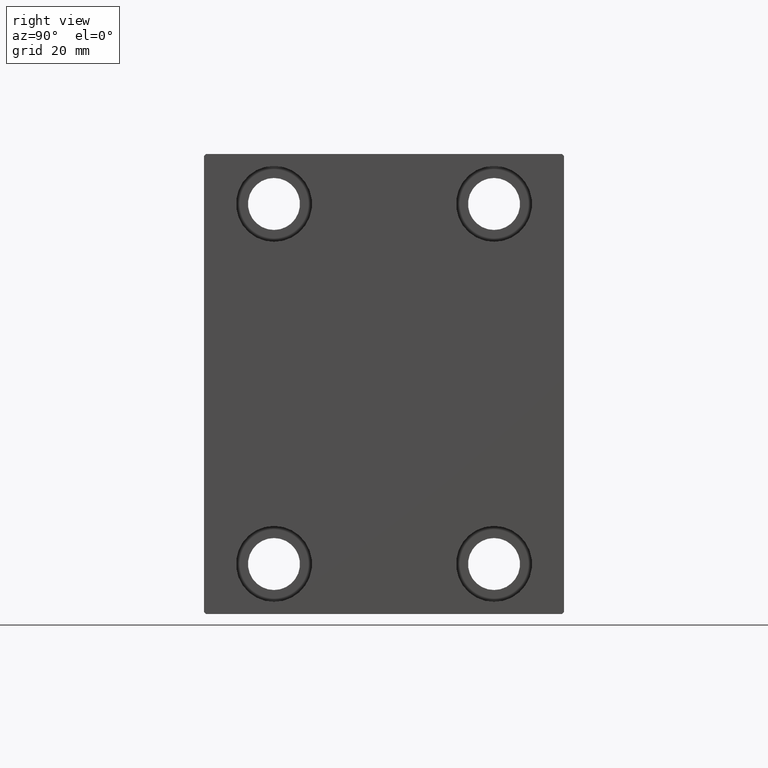
[diagram: clean part render]
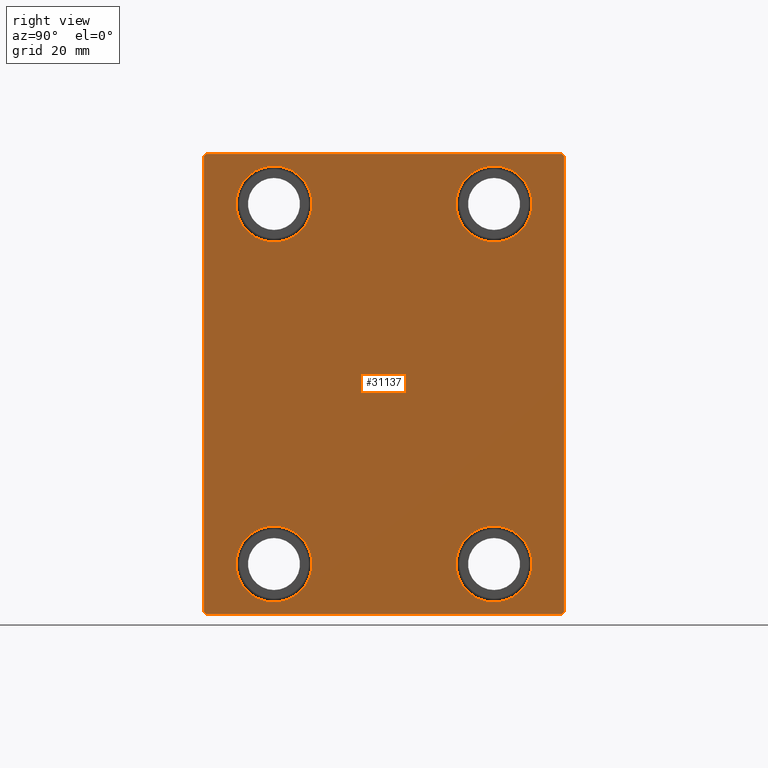
[diagram: same view with one face highlighted and labeled with its STEP entity id]
A machine part, right view. The second image highlights one B-rep face of the part: STEP entity #31137.
In plain terms, the highlighted planar face has unit normal (1, 0, 0).
Its self-contained STEP definition (entity closure, byte-faithful):
#121 = EDGE_CURVE ( 'NONE', #28173, #37496, #39825, .T. ) ;
#447 = DIRECTION ( 'NONE',  ( 0.000000000000000000, 0.000000000000000000, -1.000000000000000000 ) ) ;
#583 = EDGE_CURVE ( 'NONE', #13861, #36276, #41922, .T. ) ;
#842 = DIRECTION ( 'NONE',  ( -1.000000000000000000, -0.000000000000000000, -0.000000000000000000 ) ) ;
#929 = CARTESIAN_POINT ( 'NONE',  ( 98.00000000000000000, 27.50000000000001066, 45.00000000000000711 ) ) ;
#1652 = CARTESIAN_POINT ( 'NONE',  ( 98.00000000000000000, 44.50000000000000000, -57.50000000000000711 ) ) ;
#1910 = CARTESIAN_POINT ( 'NONE',  ( 98.00000000000000000, 27.49999999999998934, -44.99999999999998579 ) ) ;
#1913 = CIRCLE ( 'NONE', #29506, 9.500000000000001776 ) ;
#2174 = ORIENTED_EDGE ( 'NONE', *, *, #121, .T. ) ;
#2378 = ORIENTED_EDGE ( 'NONE', *, *, #23277, .T. ) ;
#2609 = CARTESIAN_POINT ( 'NONE',  ( 98.00000000000000000, -27.50000000000000000, -35.49999999999998579 ) ) ;
#3051 = CARTESIAN_POINT ( 'NONE',  ( 98.00000000000000000, -27.50000000000000000, -44.99999999999998579 ) ) ;
#3395 = ORIENTED_EDGE ( 'NONE', *, *, #25595, .T. ) ;
#3915 = DIRECTION ( 'NONE',  ( 0.000000000000000000, 0.000000000000000000, 1.000000000000000000 ) ) ;
#4112 = DIRECTION ( 'NONE',  ( -1.000000000000000000, -0.000000000000000000, -0.000000000000000000 ) ) ;
#4688 = AXIS2_PLACEMENT_3D ( 'NONE', #40385, #9625, #23144 ) ;
#4823 = CARTESIAN_POINT ( 'NONE',  ( 98.00000000000000000, -27.50000000000000000, -54.49999999999998579 ) ) ;
#5044 = ORIENTED_EDGE ( 'NONE', *, *, #583, .T. ) ;
#5195 = VERTEX_POINT ( 'NONE', #33298 ) ;
#5235 = DIRECTION ( 'NONE',  ( -1.000000000000000000, -0.000000000000000000, -0.000000000000000000 ) ) ;
#5857 = VECTOR ( 'NONE', #13823, 1000.000000000000000 ) ;
#6063 = CARTESIAN_POINT ( 'NONE',  ( 98.00000000000000000, 51.00000000000000711, 51.00000000000000711 ) ) ;
#6316 = EDGE_CURVE ( 'NONE', #5195, #37515, #27878, .T. ) ;
#6384 = CARTESIAN_POINT ( 'NONE',  ( 98.00000000000000000, 27.50000000000001066, 45.00000000000000711 ) ) ;
#6797 = AXIS2_PLACEMENT_3D ( 'NONE', #929, #40829, #10500 ) ;
#6875 = VERTEX_POINT ( 'NONE', #26578 ) ;
#7071 = VERTEX_POINT ( 'NONE', #4823 ) ;
#7444 = EDGE_CURVE ( 'NONE', #41351, #34525, #20479, .T. ) ;
#7724 = CARTESIAN_POINT ( 'NONE',  ( 98.00000000000000000, -27.50000000000000000, -44.99999999999998579 ) ) ;
#7725 = DIRECTION ( 'NONE',  ( 0.000000000000000000, -1.000000000000000000, -1.541976423090495387E-16 ) ) ;
#8702 = CARTESIAN_POINT ( 'NONE',  ( 98.00000000000000000, 51.00000000000000711, -51.00000000000000711 ) ) ;
#9385 = LINE ( 'NONE', #6063, #41456 ) ;
#9625 = DIRECTION ( 'NONE',  ( -1.000000000000000000, -0.000000000000000000, -0.000000000000000000 ) ) ;
#9748 = ORIENTED_EDGE ( 'NONE', *, *, #35031, .T. ) ;
#9943 = EDGE_LOOP ( 'NONE', ( #26898, #31846 ) ) ;
#10500 = DIRECTION ( 'NONE',  ( 0.000000000000000000, 0.000000000000000000, 1.000000000000000000 ) ) ;
#10573 = EDGE_LOOP ( 'NONE', ( #3395, #40227 ) ) ;
#10581 = LINE ( 'NONE', #11611, #12444 ) ;
#11235 = AXIS2_PLACEMENT_3D ( 'NONE', #1910, #5235, #25836 ) ;
#11611 = CARTESIAN_POINT ( 'NONE',  ( 98.00000000000000000, -51.00000000000000711, -51.00000000000000711 ) ) ;
#11626 = VERTEX_POINT ( 'NONE', #35198 ) ;
#11817 = CIRCLE ( 'NONE', #42214, 9.500000000000001776 ) ;
#12011 = CARTESIAN_POINT ( 'NONE',  ( 98.00000000000000000, -27.49999999999998934, 54.50000000000000711 ) ) ;
#12054 = VECTOR ( 'NONE', #30074, 1000.000000000000000 ) ;
#12444 = VECTOR ( 'NONE', #31995, 1000.000000000000114 ) ;
#13328 = FACE_BOUND ( 'NONE', #10573, .T. ) ;
#13823 = DIRECTION ( 'NONE',  ( 0.000000000000000000, 1.000000000000000000, 0.000000000000000000 ) ) ;
#13861 = VERTEX_POINT ( 'NONE', #26680 ) ;
#13889 = AXIS2_PLACEMENT_3D ( 'NONE', #21695, #28330, #36094 ) ;
#14286 = CARTESIAN_POINT ( 'NONE',  ( 98.00000000000000000, -45.00000000000000000, -57.00000000000002132 ) ) ;
#15302 = VERTEX_POINT ( 'NONE', #24059 ) ;
#15332 = CARTESIAN_POINT ( 'NONE',  ( 98.00000000000000000, -51.00000000000000711, 51.00000000000000711 ) ) ;
#15921 = AXIS2_PLACEMENT_3D ( 'NONE', #33597, #4112, #34467 ) ;
#16867 = FACE_BOUND ( 'NONE', #35175, .T. ) ;
#17134 = VECTOR ( 'NONE', #7725, 1000.000000000000000 ) ;
#17427 = AXIS2_PLACEMENT_3D ( 'NONE', #6384, #40898, #3915 ) ;
#19029 = DIRECTION ( 'NONE',  ( -1.000000000000000000, -0.000000000000000000, -0.000000000000000000 ) ) ;
#19593 = ORIENTED_EDGE ( 'NONE', *, *, #7444, .T. ) ;
#19930 = VERTEX_POINT ( 'NONE', #34975 ) ;
#20194 = PLANE ( 'NONE',  #23714 ) ;
#20479 = LINE ( 'NONE', #31092, #5857 ) ;
#20678 = EDGE_LOOP ( 'NONE', ( #2378, #32312 ) ) ;
#21568 = DIRECTION ( 'NONE',  ( 0.000000000000000000, -1.206764157201257045E-16, 1.000000000000000000 ) ) ;
#21695 = CARTESIAN_POINT ( 'NONE',  ( 98.00000000000000000, 27.49999999999998934, -44.99999999999998579 ) ) ;
#22321 = VERTEX_POINT ( 'NONE', #33963 ) ;
#22581 = CIRCLE ( 'NONE', #11235, 9.500000000000001776 ) ;
#23007 = CARTESIAN_POINT ( 'NONE',  ( 98.00000000000000000, -45.00000000000000000, 57.49999999999999289 ) ) ;
#23090 = DIRECTION ( 'NONE',  ( 1.000000000000000000, 0.000000000000000000, 0.000000000000000000 ) ) ;
#23144 = DIRECTION ( 'NONE',  ( 0.000000000000000000, 0.000000000000000000, 1.000000000000000000 ) ) ;
#23159 = ORIENTED_EDGE ( 'NONE', *, *, #29571, .T. ) ;
#23277 = EDGE_CURVE ( 'NONE', #11626, #32889, #29476, .T. ) ;
#23714 = AXIS2_PLACEMENT_3D ( 'NONE', #34133, #23090, #447 ) ;
#24059 = CARTESIAN_POINT ( 'NONE',  ( 98.00000000000000000, 27.50000000000001066, 35.50000000000000711 ) ) ;
#24671 = EDGE_CURVE ( 'NONE', #43290, #7071, #1913, .T. ) ;
#25595 = EDGE_CURVE ( 'NONE', #7071, #43290, #11817, .T. ) ;
#25665 = CARTESIAN_POINT ( 'NONE',  ( 98.00000000000000000, 45.00000000000000000, 56.99999999999999289 ) ) ;
#25836 = DIRECTION ( 'NONE',  ( 0.000000000000000000, 0.000000000000000000, 1.000000000000000000 ) ) ;
#25909 = CIRCLE ( 'NONE', #6797, 9.500000000000001776 ) ;
#26291 = ORIENTED_EDGE ( 'NONE', *, *, #32979, .T. ) ;
#26578 = CARTESIAN_POINT ( 'NONE',  ( 98.00000000000000000, 27.50000000000001066, 54.50000000000000711 ) ) ;
#26680 = CARTESIAN_POINT ( 'NONE',  ( 98.00000000000000000, 45.00000000000001421, -57.00000000000002132 ) ) ;
#26835 = FACE_BOUND ( 'NONE', #20678, .T. ) ;
#26898 = ORIENTED_EDGE ( 'NONE', *, *, #34683, .T. ) ;
#27878 = LINE ( 'NONE', #38064, #17134 ) ;
#27939 = CIRCLE ( 'NONE', #15921, 9.500000000000001776 ) ;
#28173 = VERTEX_POINT ( 'NONE', #42269 ) ;
#28330 = DIRECTION ( 'NONE',  ( -1.000000000000000000, -0.000000000000000000, -0.000000000000000000 ) ) ;
#28627 = ORIENTED_EDGE ( 'NONE', *, *, #32585, .T. ) ;
#28724 = ORIENTED_EDGE ( 'NONE', *, *, #6316, .T. ) ;
#28843 = DIRECTION ( 'NONE',  ( 0.000000000000000000, -0.7071067811865474617, -0.7071067811865474617 ) ) ;
#29075 = DIRECTION ( 'NONE',  ( -0.000000000000000000, 0.7071067811865474617, 0.7071067811865474617 ) ) ;
#29381 = VECTOR ( 'NONE', #28843, 1000.000000000000114 ) ;
#29476 = CIRCLE ( 'NONE', #4688, 9.500000000000001776 ) ;
#29485 = CIRCLE ( 'NONE', #13889, 9.500000000000001776 ) ;
#29506 = AXIS2_PLACEMENT_3D ( 'NONE', #3051, #19029, #32537 ) ;
#29571 = EDGE_CURVE ( 'NONE', #19930, #22321, #22581, .T. ) ;
#30074 = DIRECTION ( 'NONE',  ( 0.000000000000000000, 0.000000000000000000, -1.000000000000000000 ) ) ;
#30861 = EDGE_LOOP ( 'NONE', ( #28724, #26291, #2174, #28627, #19593, #34197, #5044, #35393 ) ) ;
#31092 = CARTESIAN_POINT ( 'NONE',  ( 98.00000000000000000, -45.00000000000000000, -57.50000000000000711 ) ) ;
#31137 = ADVANCED_FACE ( 'NONE', ( #16867, #26835, #37024, #13328, #33489 ), #20194, .T. ) ;
#31477 = EDGE_CURVE ( 'NONE', #32889, #11626, #27939, .T. ) ;
#31777 = CARTESIAN_POINT ( 'NONE',  ( 98.00000000000000000, -44.50000000000001421, -57.50000000000000711 ) ) ;
#31846 = ORIENTED_EDGE ( 'NONE', *, *, #35582, .T. ) ;
#31978 = CARTESIAN_POINT ( 'NONE',  ( 98.00000000000000000, 45.00000000000001421, -57.50000000000000711 ) ) ;
#31995 = DIRECTION ( 'NONE',  ( -0.000000000000000000, 0.7071067811865474617, -0.7071067811865474617 ) ) ;
#32312 = ORIENTED_EDGE ( 'NONE', *, *, #31477, .T. ) ;
#32537 = DIRECTION ( 'NONE',  ( 0.000000000000000000, 0.000000000000000000, 1.000000000000000000 ) ) ;
#32585 = EDGE_CURVE ( 'NONE', #37496, #41351, #10581, .T. ) ;
#32889 = VERTEX_POINT ( 'NONE', #12011 ) ;
#32979 = EDGE_CURVE ( 'NONE', #37515, #28173, #35488, .T. ) ;
#33066 = VECTOR ( 'NONE', #29075, 1000.000000000000114 ) ;
#33298 = CARTESIAN_POINT ( 'NONE',  ( 98.00000000000000000, 44.50000000000001421, 57.50000000000000711 ) ) ;
#33489 = FACE_OUTER_BOUND ( 'NONE', #30861, .T. ) ;
#33582 = CARTESIAN_POINT ( 'NONE',  ( 98.00000000000000000, -44.50000000000000000, 57.49999999999999289 ) ) ;
#33597 = CARTESIAN_POINT ( 'NONE',  ( 98.00000000000000000, -27.49999999999998934, 45.00000000000000711 ) ) ;
#33963 = CARTESIAN_POINT ( 'NONE',  ( 98.00000000000000000, 27.49999999999998934, -54.49999999999998579 ) ) ;
#34133 = CARTESIAN_POINT ( 'NONE',  ( 98.00000000000000000, 0.000000000000000000, 0.000000000000000000 ) ) ;
#34197 = ORIENTED_EDGE ( 'NONE', *, *, #41038, .T. ) ;
#34467 = DIRECTION ( 'NONE',  ( 0.000000000000000000, 0.000000000000000000, 1.000000000000000000 ) ) ;
#34525 = VERTEX_POINT ( 'NONE', #1652 ) ;
#34683 = EDGE_CURVE ( 'NONE', #15302, #6875, #25909, .T. ) ;
#34975 = CARTESIAN_POINT ( 'NONE',  ( 98.00000000000000000, 27.49999999999998934, -35.49999999999998579 ) ) ;
#35031 = EDGE_CURVE ( 'NONE', #22321, #19930, #29485, .T. ) ;
#35126 = CIRCLE ( 'NONE', #17427, 9.500000000000001776 ) ;
#35175 = EDGE_LOOP ( 'NONE', ( #9748, #23159 ) ) ;
#35198 = CARTESIAN_POINT ( 'NONE',  ( 98.00000000000000000, -27.49999999999998934, 35.50000000000000711 ) ) ;
#35393 = ORIENTED_EDGE ( 'NONE', *, *, #35745, .T. ) ;
#35488 = LINE ( 'NONE', #15332, #29381 ) ;
#35582 = EDGE_CURVE ( 'NONE', #6875, #15302, #35126, .T. ) ;
#35745 = EDGE_CURVE ( 'NONE', #36276, #5195, #9385, .T. ) ;
#36094 = DIRECTION ( 'NONE',  ( 0.000000000000000000, 0.000000000000000000, 1.000000000000000000 ) ) ;
#36189 = DIRECTION ( 'NONE',  ( -0.000000000000000000, -0.7071067811865474617, 0.7071067811865474617 ) ) ;
#36276 = VERTEX_POINT ( 'NONE', #25665 ) ;
#37024 = FACE_BOUND ( 'NONE', #9943, .T. ) ;
#37496 = VERTEX_POINT ( 'NONE', #14286 ) ;
#37515 = VERTEX_POINT ( 'NONE', #33582 ) ;
#38064 = CARTESIAN_POINT ( 'NONE',  ( 98.00000000000000000, 45.00000000000000000, 57.50000000000000711 ) ) ;
#39251 = LINE ( 'NONE', #8702, #33066 ) ;
#39825 = LINE ( 'NONE', #23007, #12054 ) ;
#40227 = ORIENTED_EDGE ( 'NONE', *, *, #24671, .T. ) ;
#40347 = VECTOR ( 'NONE', #21568, 1000.000000000000000 ) ;
#40385 = CARTESIAN_POINT ( 'NONE',  ( 98.00000000000000000, -27.49999999999998934, 45.00000000000000711 ) ) ;
#40829 = DIRECTION ( 'NONE',  ( -1.000000000000000000, -0.000000000000000000, -0.000000000000000000 ) ) ;
#40898 = DIRECTION ( 'NONE',  ( -1.000000000000000000, -0.000000000000000000, -0.000000000000000000 ) ) ;
#41038 = EDGE_CURVE ( 'NONE', #34525, #13861, #39251, .T. ) ;
#41351 = VERTEX_POINT ( 'NONE', #31777 ) ;
#41378 = DIRECTION ( 'NONE',  ( 0.000000000000000000, 0.000000000000000000, 1.000000000000000000 ) ) ;
#41456 = VECTOR ( 'NONE', #36189, 1000.000000000000114 ) ;
#41922 = LINE ( 'NONE', #31978, #40347 ) ;
#42214 = AXIS2_PLACEMENT_3D ( 'NONE', #7724, #842, #41378 ) ;
#42269 = CARTESIAN_POINT ( 'NONE',  ( 98.00000000000000000, -45.00000000000000000, 57.00000000000002132 ) ) ;
#43290 = VERTEX_POINT ( 'NONE', #2609 ) ;